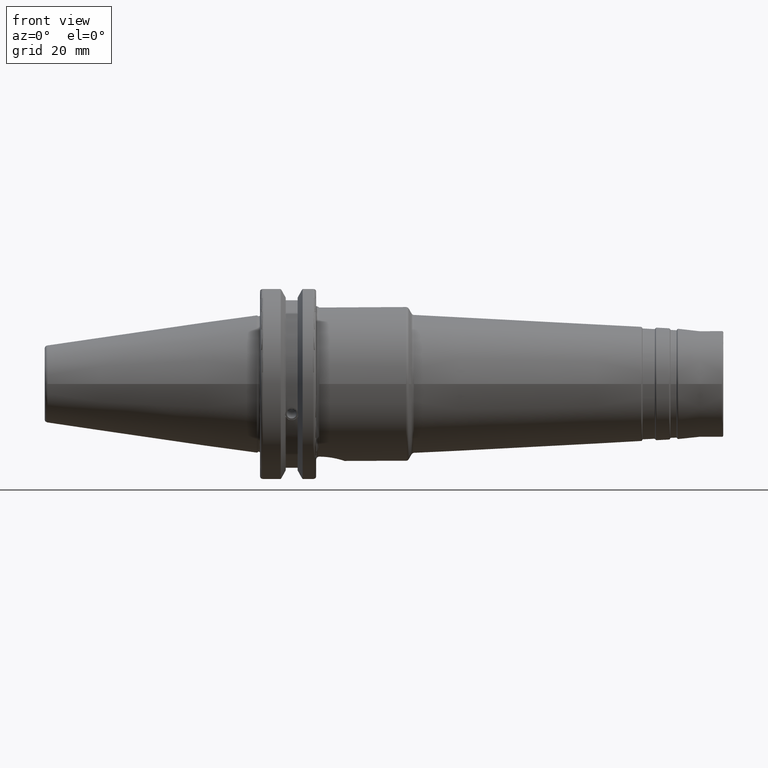
[diagram: clean part render]
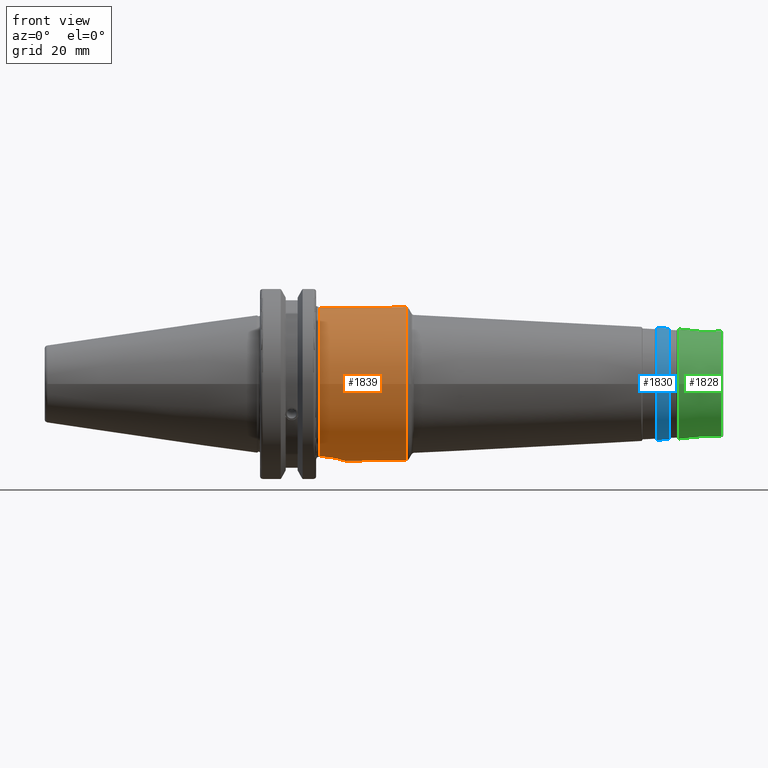
[diagram: same view with three faces highlighted in distinct colors, each labeled with its STEP entity id]
A machine part, front view with three faces highlighted in distinct colors.
Their STEP definitions:

[orange] entity #1839 — the highlighted cylindrical surface (bore or boss wall) has radius 24.75 mm, axis along (1, 0, 0).
#51=B_SPLINE_CURVE_WITH_KNOTS('',3,(#2932,#2933,#2934,#2935,#2936,#2937,
#2938,#2939,#2940,#2941,#2942,#2943,#2944,#2945,#2946,#2947,#2948,#2949),
 .UNSPECIFIED.,.F.,.F.,(4,2,2,2,2,2,2,2,4),(-2.48845986202559,-2.17733241913027,
-1.86620497623495,-1.55521745362387,-1.24422993101279,-0.933242408401713,
-0.622254885790634,-0.311127442895317,0.),.UNSPECIFIED.);
#87=CYLINDRICAL_SURFACE('',#2023,24.75);
#177=LINE('',#2928,#270);
#270=VECTOR('',#2365,24.75);
#398=FACE_OUTER_BOUND('',#505,.T.);
#505=EDGE_LOOP('',(#1342,#1343,#1344,#1345,#1346,#1347,#1348));
#656=CIRCLE('',#2021,24.75);
#657=CIRCLE('',#2022,24.75);
#658=CIRCLE('',#2024,24.75);
#659=CIRCLE('',#2025,24.75);
#772=VERTEX_POINT('',#2921);
#773=VERTEX_POINT('',#2923);
#774=VERTEX_POINT('',#2927);
#775=VERTEX_POINT('',#2929);
#776=VERTEX_POINT('',#2931);
#986=EDGE_CURVE('',#772,#773,#656,.T.);
#987=EDGE_CURVE('',#773,#772,#657,.T.);
#988=EDGE_CURVE('',#773,#774,#177,.T.);
#989=EDGE_CURVE('',#775,#774,#658,.T.);
#990=EDGE_CURVE('',#775,#776,#51,.T.);
#991=EDGE_CURVE('',#774,#776,#659,.T.);
#1342=ORIENTED_EDGE('',*,*,#987,.F.);
#1343=ORIENTED_EDGE('',*,*,#988,.T.);
#1344=ORIENTED_EDGE('',*,*,#989,.F.);
#1345=ORIENTED_EDGE('',*,*,#990,.T.);
#1346=ORIENTED_EDGE('',*,*,#991,.F.);
#1347=ORIENTED_EDGE('',*,*,#988,.F.);
#1348=ORIENTED_EDGE('',*,*,#986,.F.);
#1839=ADVANCED_FACE('',(#398),#87,.T.);
#2021=AXIS2_PLACEMENT_3D('',#2924,#2359,#2360);
#2022=AXIS2_PLACEMENT_3D('',#2925,#2361,#2362);
#2023=AXIS2_PLACEMENT_3D('',#2926,#2363,#2364);
#2024=AXIS2_PLACEMENT_3D('',#2930,#2366,#2367);
#2025=AXIS2_PLACEMENT_3D('',#2950,#2368,#2369);
#2359=DIRECTION('center_axis',(1.,0.,0.));
#2360=DIRECTION('ref_axis',(0.,-1.,1.83697019872103E-16));
#2361=DIRECTION('center_axis',(1.,0.,0.));
#2362=DIRECTION('ref_axis',(0.,-1.,1.83697019872103E-16));
#2363=DIRECTION('center_axis',(1.,0.,0.));
#2364=DIRECTION('ref_axis',(0.,1.,0.));
#2365=DIRECTION('',(-1.,0.,0.));
#2366=DIRECTION('center_axis',(-1.,0.,0.));
#2367=DIRECTION('ref_axis',(0.,6.12323399573677E-17,1.));
#2368=DIRECTION('center_axis',(-1.,0.,0.));
#2369=DIRECTION('ref_axis',(0.,6.12323399573677E-17,1.));
#2921=CARTESIAN_POINT('',(47.9739496922602,-3.0310008278897E-15,24.75));
#2923=CARTESIAN_POINT('',(47.9739496922602,-24.75,-3.0310008278897E-15));
#2924=CARTESIAN_POINT('Origin',(47.9739496922602,0.,0.));
#2925=CARTESIAN_POINT('Origin',(47.9739496922602,0.,0.));
#2926=CARTESIAN_POINT('Origin',(33.8006499807249,0.,0.));
#2927=CARTESIAN_POINT('',(20.05,-24.75,-3.0310008278897E-15));
#2928=CARTESIAN_POINT('',(33.8006499807249,-24.75,-3.0310008278897E-15));
#2929=CARTESIAN_POINT('',(20.05,-8.19,-23.3556502799644));
#2930=CARTESIAN_POINT('Origin',(20.05,0.,0.));
#2931=CARTESIAN_POINT('',(20.05,8.19,-23.3556502799644));
#2932=CARTESIAN_POINT('Ctrl Pts',(20.05,-8.19,-23.3556502799644));
#2933=CARTESIAN_POINT('Ctrl Pts',(21.0870914763177,-8.19,-23.3556502799644));
#2934=CARTESIAN_POINT('Ctrl Pts',(22.1874172494719,-7.98112852617489,-23.4319820145953));
#2935=CARTESIAN_POINT('Ctrl Pts',(24.2026226557735,-7.14301766428651,-23.7009173446597));
#2936=CARTESIAN_POINT('Ctrl Pts',(25.1182638848105,-6.51414519102515,-23.8889373554493));
#2937=CARTESIAN_POINT('Ctrl Pts',(26.563820070037,-5.06858900579863,-24.2368381566145));
#2938=CARTESIAN_POINT('Ctrl Pts',(27.1929429534371,-4.15281808103606,-24.420258379043));
#2939=CARTESIAN_POINT('Ctrl Pts',(28.0312404144778,-2.13713243178097,-24.6784841969773));
#2940=CARTESIAN_POINT('Ctrl Pts',(28.24,-1.03662507537027,-24.75));
#2941=CARTESIAN_POINT('Ctrl Pts',(28.24,1.03662507537027,-24.75));
#2942=CARTESIAN_POINT('Ctrl Pts',(28.0312404144778,2.13713243178098,-24.6784841969773));
#2943=CARTESIAN_POINT('Ctrl Pts',(27.1929429534371,4.15281808103607,-24.420258379043));
#2944=CARTESIAN_POINT('Ctrl Pts',(26.563820070037,5.06858900579863,-24.2368381566145));
#2945=CARTESIAN_POINT('Ctrl Pts',(25.1182638848105,6.51414519102516,-23.8889373554493));
#2946=CARTESIAN_POINT('Ctrl Pts',(24.2026226557734,7.14301766428652,-23.7009173446597));
#2947=CARTESIAN_POINT('Ctrl Pts',(22.1874172494719,7.98112852617489,-23.4319820145953));
#2948=CARTESIAN_POINT('Ctrl Pts',(21.0870914763177,8.19,-23.3556502799644));
#2949=CARTESIAN_POINT('Ctrl Pts',(20.05,8.19,-23.3556502799644));
#2950=CARTESIAN_POINT('Origin',(20.05,0.,0.));

[blue] entity #1830 — the highlighted conical surface has half-angle 3 deg.
#174=LINE('',#2883,#267);
#267=VECTOR('',#2306,18.0202570867172);
#360=CONICAL_SURFACE('',#1995,18.0202570867172,0.0523598775598298);
#389=FACE_OUTER_BOUND('',#495,.T.);
#495=EDGE_LOOP('',(#1293,#1294,#1295,#1296,#1297,#1298));
#637=CIRCLE('',#1993,17.9166117566925);
#638=CIRCLE('',#1994,17.9166117566925);
#639=CIRCLE('',#1996,18.1239024167419);
#640=CIRCLE('',#1997,18.1239024167419);
#758=VERTEX_POINT('',#2876);
#759=VERTEX_POINT('',#2878);
#760=VERTEX_POINT('',#2882);
#761=VERTEX_POINT('',#2884);
#964=EDGE_CURVE('',#758,#759,#637,.T.);
#965=EDGE_CURVE('',#759,#758,#638,.T.);
#966=EDGE_CURVE('',#759,#760,#174,.T.);
#967=EDGE_CURVE('',#761,#760,#639,.T.);
#968=EDGE_CURVE('',#760,#761,#640,.T.);
#1293=ORIENTED_EDGE('',*,*,#965,.F.);
#1294=ORIENTED_EDGE('',*,*,#966,.T.);
#1295=ORIENTED_EDGE('',*,*,#967,.F.);
#1296=ORIENTED_EDGE('',*,*,#968,.F.);
#1297=ORIENTED_EDGE('',*,*,#966,.F.);
#1298=ORIENTED_EDGE('',*,*,#964,.F.);
#1830=ADVANCED_FACE('',(#389),#360,.T.);
#1993=AXIS2_PLACEMENT_3D('',#2879,#2300,#2301);
#1994=AXIS2_PLACEMENT_3D('',#2880,#2302,#2303);
#1995=AXIS2_PLACEMENT_3D('',#2881,#2304,#2305);
#1996=AXIS2_PLACEMENT_3D('',#2885,#2307,#2308);
#1997=AXIS2_PLACEMENT_3D('',#2886,#2309,#2310);
#2300=DIRECTION('center_axis',(1.,0.,0.));
#2301=DIRECTION('ref_axis',(0.,-1.,3.06161699786838E-17));
#2302=DIRECTION('center_axis',(1.,0.,0.));
#2303=DIRECTION('ref_axis',(0.,-1.,3.06161699786838E-17));
#2304=DIRECTION('center_axis',(-1.,0.,0.));
#2305=DIRECTION('ref_axis',(0.,1.,0.));
#2306=DIRECTION('',(-0.998629534754574,-0.0523359562429437,-6.4093061293237E-18));
#2307=DIRECTION('center_axis',(-1.,0.,0.));
#2308=DIRECTION('ref_axis',(0.,-1.,3.06161699786838E-17));
#2309=DIRECTION('center_axis',(-1.,0.,0.));
#2310=DIRECTION('ref_axis',(0.,-1.,3.06161699786838E-17));
#2876=CARTESIAN_POINT('',(132.510005780972,-2.19415212393993E-15,17.9166117566925));
#2878=CARTESIAN_POINT('',(132.510005780972,-17.9166117566925,-2.19415212393993E-15));
#2879=CARTESIAN_POINT('Origin',(132.510005780972,0.,-2.74269015492491E-15));
#2880=CARTESIAN_POINT('Origin',(132.510005780972,0.,-2.74269015492491E-15));
#2881=CARTESIAN_POINT('Origin',(130.532335071726,0.,0.));
#2882=CARTESIAN_POINT('',(128.55466436248,-18.1239024167419,-2.2195379082722E-15));
#2883=CARTESIAN_POINT('',(130.532335071726,-18.0202570867172,-2.20684501610606E-15));
#2884=CARTESIAN_POINT('',(128.55466436248,-2.2195379082722E-15,18.1239024167419));
#2885=CARTESIAN_POINT('Origin',(128.55466436248,0.,-2.77442238534024E-15));
#2886=CARTESIAN_POINT('Origin',(128.55466436248,0.,-2.77442238534024E-15));

[green] entity #1828 — the highlighted conical surface has half-angle 3 deg.
#173=LINE('',#2873,#266);
#266=VECTOR('',#2293,17.3848185972057);
#359=CONICAL_SURFACE('',#1988,17.3848185972057,0.0523598775598299);
#387=FACE_OUTER_BOUND('',#493,.T.);
#493=EDGE_LOOP('',(#1281,#1282,#1283,#1284,#1285,#1286));
#631=CIRCLE('',#1985,17.7575507230413);
#632=CIRCLE('',#1986,17.7575507230413);
#634=CIRCLE('',#1989,17.0248324840198);
#635=CIRCLE('',#1990,17.0248324840198);
#754=VERTEX_POINT('',#2864);
#755=VERTEX_POINT('',#2865);
#756=VERTEX_POINT('',#2870);
#757=VERTEX_POINT('',#2871);
#957=EDGE_CURVE('',#754,#755,#631,.T.);
#958=EDGE_CURVE('',#755,#754,#632,.T.);
#960=EDGE_CURVE('',#756,#757,#634,.T.);
#961=EDGE_CURVE('',#756,#755,#173,.T.);
#962=EDGE_CURVE('',#757,#756,#635,.T.);
#1281=ORIENTED_EDGE('',*,*,#960,.F.);
#1282=ORIENTED_EDGE('',*,*,#961,.T.);
#1283=ORIENTED_EDGE('',*,*,#957,.F.);
#1284=ORIENTED_EDGE('',*,*,#958,.F.);
#1285=ORIENTED_EDGE('',*,*,#961,.F.);
#1286=ORIENTED_EDGE('',*,*,#962,.F.);
#1828=ADVANCED_FACE('',(#387),#359,.T.);
#1985=AXIS2_PLACEMENT_3D('',#2866,#2283,#2284);
#1986=AXIS2_PLACEMENT_3D('',#2867,#2285,#2286);
#1988=AXIS2_PLACEMENT_3D('',#2869,#2289,#2290);
#1989=AXIS2_PLACEMENT_3D('',#2872,#2291,#2292);
#1990=AXIS2_PLACEMENT_3D('',#2874,#2294,#2295);
#2283=DIRECTION('center_axis',(-1.,0.,0.));
#2284=DIRECTION('ref_axis',(0.,-1.,3.06161699786839E-17));
#2285=DIRECTION('center_axis',(-1.,0.,0.));
#2286=DIRECTION('ref_axis',(0.,-1.,3.06161699786839E-17));
#2289=DIRECTION('center_axis',(-1.,0.,0.));
#2290=DIRECTION('ref_axis',(0.,1.,0.));
#2291=DIRECTION('center_axis',(1.,0.,0.));
#2292=DIRECTION('ref_axis',(0.,-1.,3.06161699786838E-17));
#2293=DIRECTION('',(-0.998629534754574,-0.0523359562429439,-6.40930612932372E-18));
#2294=DIRECTION('center_axis',(1.,0.,0.));
#2295=DIRECTION('ref_axis',(0.,-1.,3.06161699786838E-17));
#2864=CARTESIAN_POINT('',(135.545071105762,-2.17467276536693E-15,17.7575507230413));
#2865=CARTESIAN_POINT('',(135.545071105762,-17.7575507230413,-2.17467276536693E-15));
#2866=CARTESIAN_POINT('Origin',(135.545071105762,0.,-2.71834095670866E-15));
#2867=CARTESIAN_POINT('Origin',(135.545071105762,0.,-2.71834095670866E-15));
#2869=CARTESIAN_POINT('Origin',(142.657223746739,0.,0.));
#2870=CARTESIAN_POINT('',(149.526167978121,-17.0248324840198,-2.08494066075748E-15));
#2871=CARTESIAN_POINT('',(149.526167978121,-2.08494066075748E-15,17.0248324840198));
#2872=CARTESIAN_POINT('Origin',(149.526167978121,0.,-2.60617582594685E-15));
#2873=CARTESIAN_POINT('',(142.657223746739,-17.3848185972057,-2.12902624488253E-15));
#2874=CARTESIAN_POINT('Origin',(149.526167978121,0.,-2.60617582594685E-15));